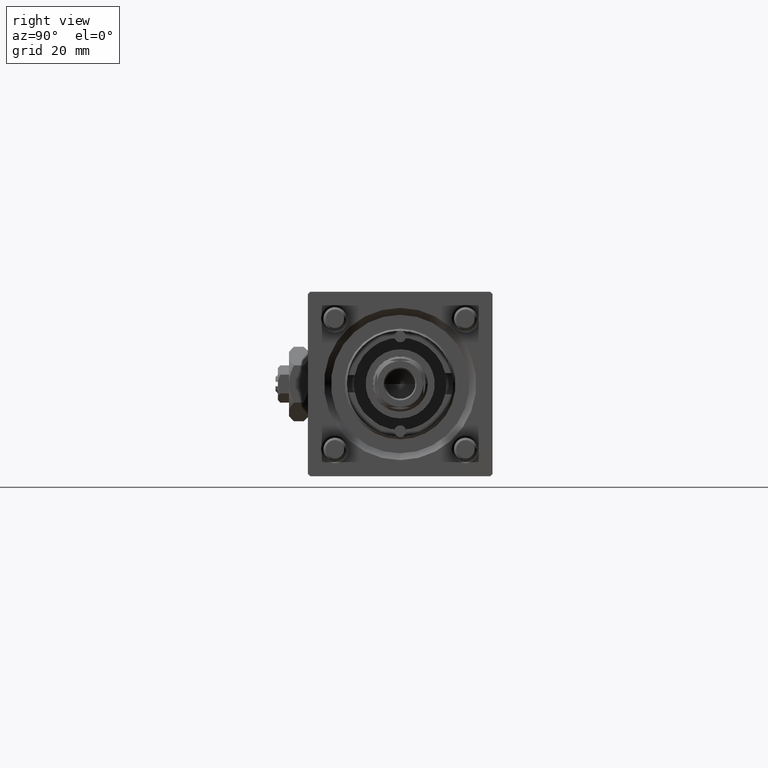
[diagram: clean part render]
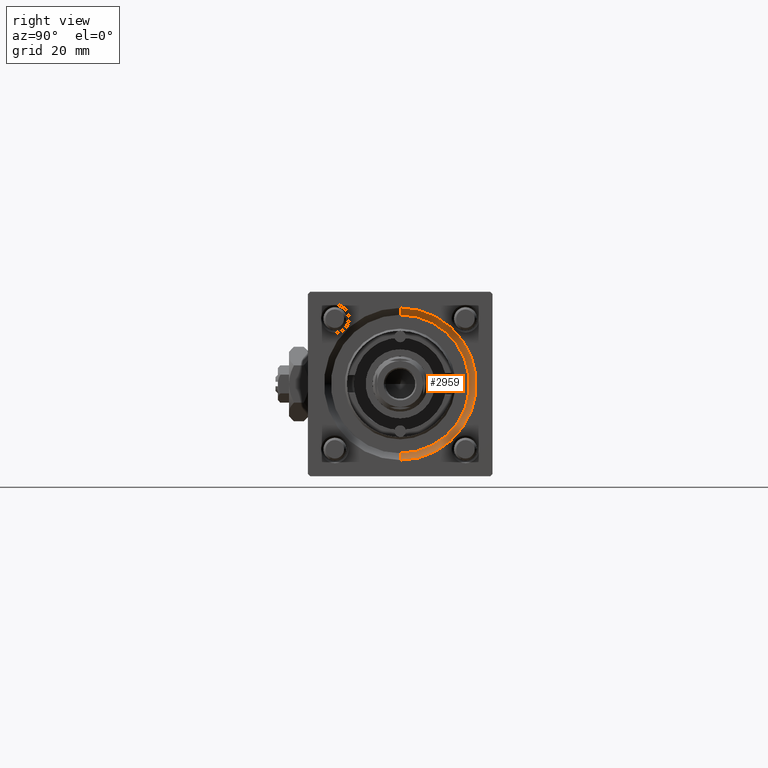
[diagram: same view with one face highlighted and labeled with its STEP entity id]
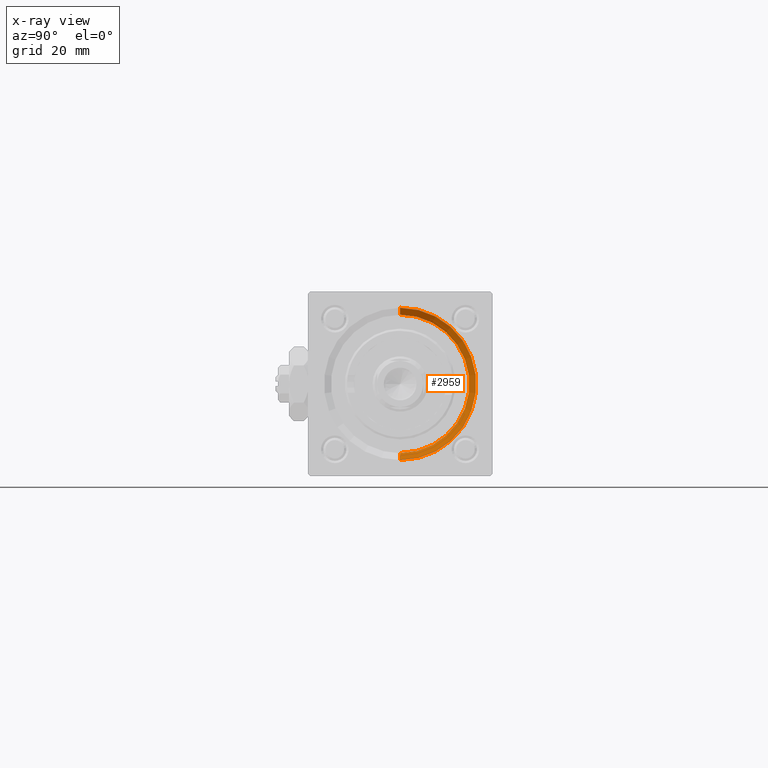
[diagram: x-ray of the same camera — body ghosted, the highlighted face saturated]
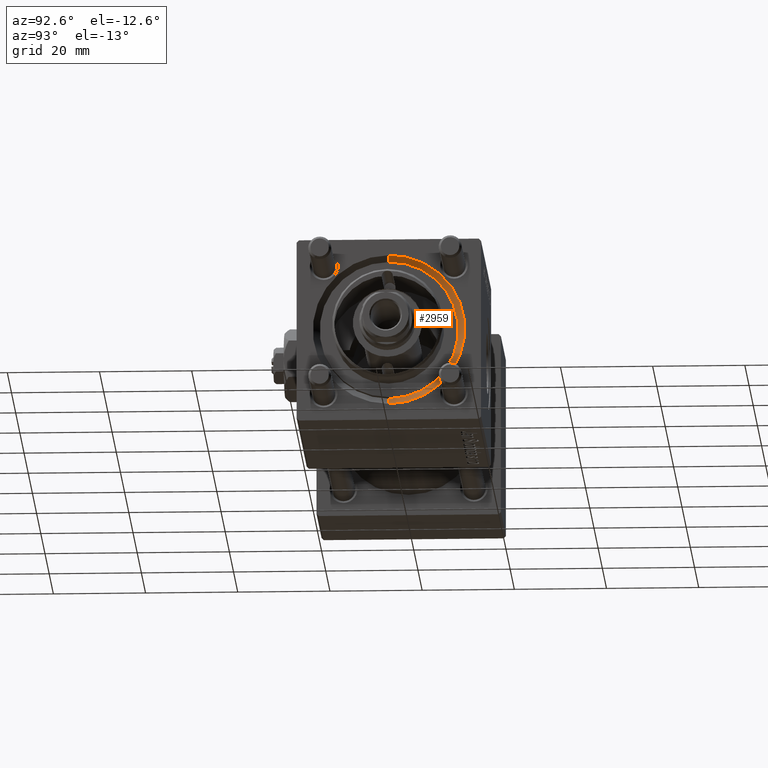
[diagram: same view with one face highlighted and labeled with its STEP entity id]
A machine part, right view. The second image highlights one B-rep face of the part: STEP entity #2959.
The next image is the same camera in x-ray: the body ghosted, the highlighted face saturated — about 0% of this face is hidden behind the body in this view.
A second angle (auxiliary view) of the same face is appended — the face is thin or edge-on in the first view.
In plain terms, the highlighted conical surface has half-angle 45 deg.
Its self-contained STEP definition (entity closure, byte-faithful):
#2033 = CARTESIAN_POINT ( 'NONE',  ( 117.5000000000000000, 1.836970198721029589E-15, 15.00000000000000000 ) ) ;
#2959 = ADVANCED_FACE ( 'NONE', ( #41005 ), #41431, .F. ) ;
#4338 = CARTESIAN_POINT ( 'NONE',  ( 119.0000000000000142, 0.000000000000000000, 0.000000000000000000 ) ) ;
#4854 = DIRECTION ( 'NONE',  ( 0.7071067811865474617, 8.659560562354932858E-17, 0.7071067811865474617 ) ) ;
#5420 = DIRECTION ( 'NONE',  ( 0.000000000000000000, 0.000000000000000000, -1.000000000000000000 ) ) ;
#5784 = CIRCLE ( 'NONE', #24680, 16.50000000000001421 ) ;
#6900 = ORIENTED_EDGE ( 'NONE', *, *, #27586, .T. ) ;
#9029 = VERTEX_POINT ( 'NONE', #35381 ) ;
#10367 = EDGE_LOOP ( 'NONE', ( #47118, #51913, #6900, #17158 ) ) ;
#13836 = LINE ( 'NONE', #31023, #31378 ) ;
#15077 = CARTESIAN_POINT ( 'NONE',  ( 117.5000000000000000, 0.000000000000000000, -15.00000000000000000 ) ) ;
#16315 = CIRCLE ( 'NONE', #33316, 15.00000000000000000 ) ;
#17158 = ORIENTED_EDGE ( 'NONE', *, *, #25965, .F. ) ;
#21539 = DIRECTION ( 'NONE',  ( 0.7071067811865474617, 0.000000000000000000, -0.7071067811865474617 ) ) ;
#22409 = VERTEX_POINT ( 'NONE', #39916 ) ;
#22464 = AXIS2_PLACEMENT_3D ( 'NONE', #46050, #49900, #5420 ) ;
#24659 = CARTESIAN_POINT ( 'NONE',  ( 117.5000000000000000, 0.000000000000000000, 0.000000000000000000 ) ) ;
#24680 = AXIS2_PLACEMENT_3D ( 'NONE', #4338, #57696, #53553 ) ;
#25965 = EDGE_CURVE ( 'NONE', #9029, #22409, #5784, .T. ) ;
#26498 = LINE ( 'NONE', #50214, #53959 ) ;
#27586 = EDGE_CURVE ( 'NONE', #51798, #22409, #13836, .T. ) ;
#29514 = EDGE_CURVE ( 'NONE', #51798, #33997, #16315, .T. ) ;
#29985 = DIRECTION ( 'NONE',  ( 0.000000000000000000, 0.000000000000000000, 1.000000000000000000 ) ) ;
#31023 = CARTESIAN_POINT ( 'NONE',  ( 117.5000000000000000, 0.000000000000000000, -15.00000000000000000 ) ) ;
#31378 = VECTOR ( 'NONE', #21539, 1000.000000000000114 ) ;
#33269 = DIRECTION ( 'NONE',  ( 1.000000000000000000, 0.000000000000000000, 0.000000000000000000 ) ) ;
#33316 = AXIS2_PLACEMENT_3D ( 'NONE', #24659, #33269, #29985 ) ;
#33997 = VERTEX_POINT ( 'NONE', #2033 ) ;
#35381 = CARTESIAN_POINT ( 'NONE',  ( 119.0000000000000142, 2.020667218593134678E-15, 16.50000000000001421 ) ) ;
#39916 = CARTESIAN_POINT ( 'NONE',  ( 119.0000000000000142, 0.000000000000000000, -16.50000000000001421 ) ) ;
#41005 = FACE_OUTER_BOUND ( 'NONE', #10367, .T. ) ;
#41431 = CONICAL_SURFACE ( 'NONE', #22464, 15.00000000000000000, 0.7853981633974482790 ) ;
#41595 = EDGE_CURVE ( 'NONE', #33997, #9029, #26498, .T. ) ;
#46050 = CARTESIAN_POINT ( 'NONE',  ( 117.5000000000000000, 0.000000000000000000, 0.000000000000000000 ) ) ;
#47118 = ORIENTED_EDGE ( 'NONE', *, *, #41595, .F. ) ;
#49900 = DIRECTION ( 'NONE',  ( 1.000000000000000000, 0.000000000000000000, 0.000000000000000000 ) ) ;
#50214 = CARTESIAN_POINT ( 'NONE',  ( 117.5000000000000000, 1.836970198721029589E-15, 15.00000000000000000 ) ) ;
#51798 = VERTEX_POINT ( 'NONE', #15077 ) ;
#51913 = ORIENTED_EDGE ( 'NONE', *, *, #29514, .F. ) ;
#53553 = DIRECTION ( 'NONE',  ( 0.000000000000000000, 0.000000000000000000, 1.000000000000000000 ) ) ;
#53959 = VECTOR ( 'NONE', #4854, 1000.000000000000114 ) ;
#57696 = DIRECTION ( 'NONE',  ( -1.000000000000000000, -0.000000000000000000, -0.000000000000000000 ) ) ;